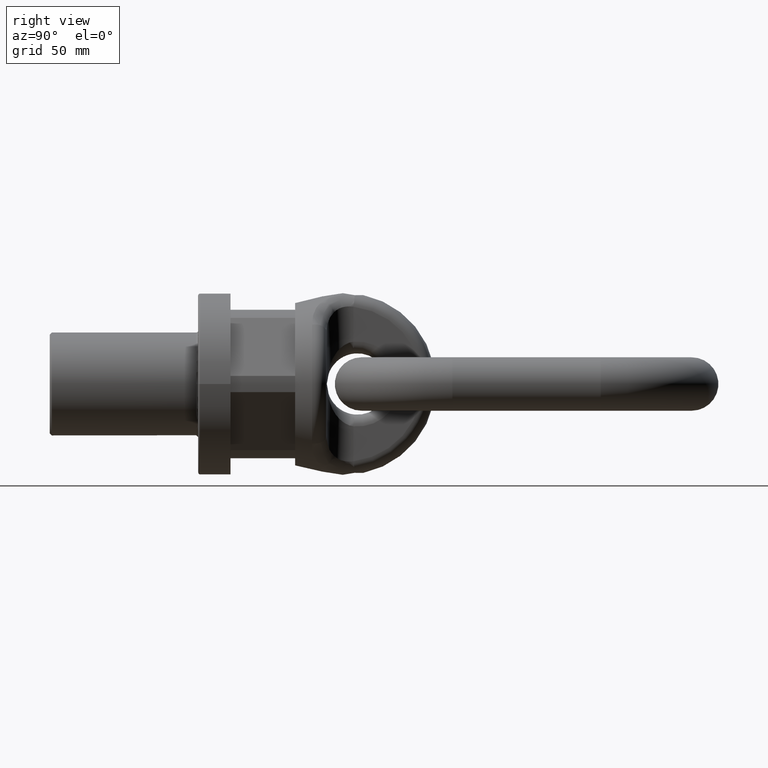
[diagram: clean part render]
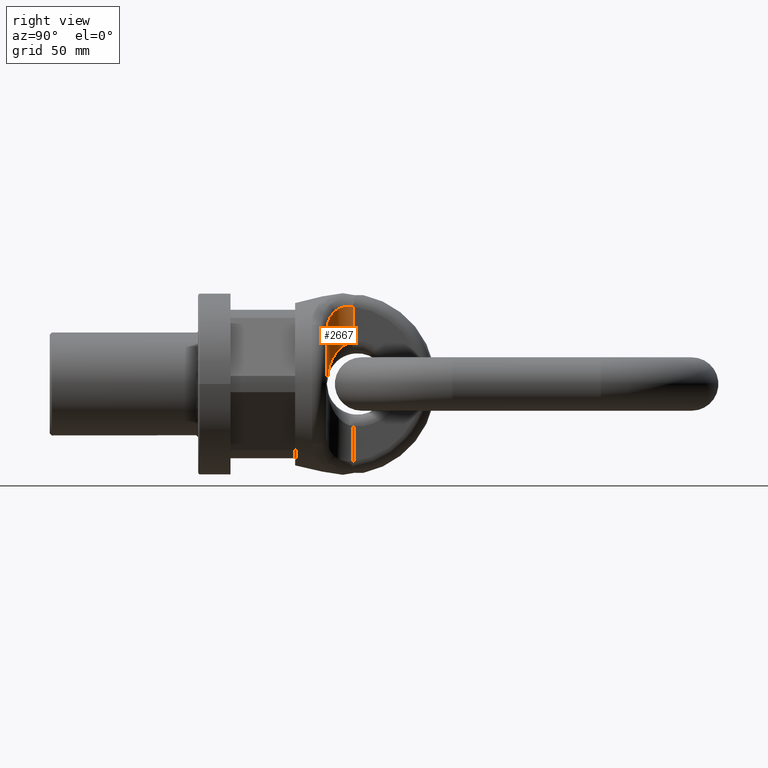
[diagram: same view with one face highlighted and labeled with its STEP entity id]
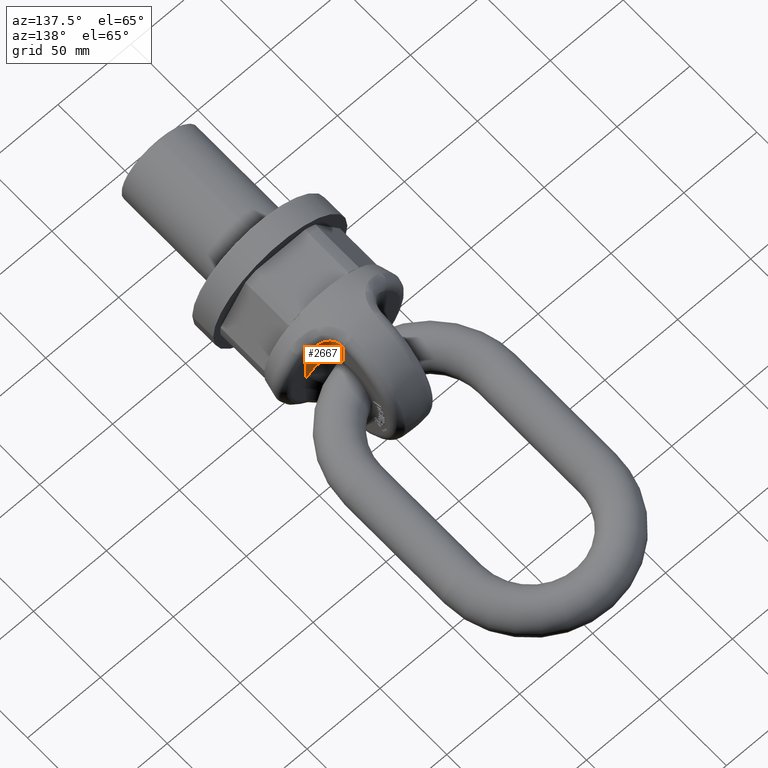
[diagram: same view with one face highlighted and labeled with its STEP entity id]
A machine part, right view. The second image highlights one B-rep face of the part: STEP entity #2667.
A second angle (auxiliary view) of the same face is appended — the face is thin or edge-on in the first view.
In plain terms, the highlighted cylindrical surface (edge-blend (fillet) strip) has radius 13.5 mm, axis along (0, 0, -1).
Its self-contained STEP definition (entity closure, byte-faithful):
#351=B_SPLINE_CURVE_WITH_KNOTS('',3,(#6972,#6973,#6974,#6975,#6976,#6977,
#6978,#6979),.UNSPECIFIED.,.F.,.F.,(4,2,2,4),(0.,0.5,0.75,1.),
 .UNSPECIFIED.);
#352=B_SPLINE_CURVE_WITH_KNOTS('',3,(#6980,#6981,#6982,#6983,#6984,#6985),
 .UNSPECIFIED.,.F.,.F.,(4,2,4),(0.,0.5,1.),.UNSPECIFIED.);
#353=B_SPLINE_CURVE_WITH_KNOTS('',3,(#6987,#6988,#6989,#6990,#6991,#6992),
 .UNSPECIFIED.,.F.,.F.,(4,2,4),(0.,0.5,1.),.UNSPECIFIED.);
#1820=FACE_OUTER_BOUND('',#3102,.T.);
#2028=CYLINDRICAL_SURFACE('',#5650,13.5);
#2071=LINE('',#6788,#2327);
#2099=LINE('',#6969,#2355);
#2327=VECTOR('',#5927,1.);
#2355=VECTOR('',#5961,1.);
#2667=ADVANCED_FACE('',(#1820),#2028,.F.);
#3102=EDGE_LOOP('',(#3511,#3512,#3513,#3514,#3515));
#3511=ORIENTED_EDGE('',*,*,#5058,.F.);
#3512=ORIENTED_EDGE('',*,*,#5059,.T.);
#3513=ORIENTED_EDGE('',*,*,#5008,.F.);
#3514=ORIENTED_EDGE('',*,*,#5060,.T.);
#3515=ORIENTED_EDGE('',*,*,#5061,.T.);
#4598=VERTEX_POINT('',#6789);
#4599=VERTEX_POINT('',#6790);
#4648=VERTEX_POINT('',#6970);
#4649=VERTEX_POINT('',#6971);
#4650=VERTEX_POINT('',#6986);
#5008=EDGE_CURVE('',#4598,#4599,#2071,.T.);
#5058=EDGE_CURVE('',#4648,#4649,#2099,.T.);
#5059=EDGE_CURVE('',#4648,#4599,#351,.T.);
#5060=EDGE_CURVE('',#4598,#4650,#352,.T.);
#5061=EDGE_CURVE('',#4650,#4649,#353,.T.);
#5650=AXIS2_PLACEMENT_3D('',#6993,#5962,#5963);
#5927=DIRECTION('',(0.,0.,-1.));
#5961=DIRECTION('',(0.,0.,1.));
#5962=DIRECTION('',(0.,0.,-1.));
#5963=DIRECTION('',(-1.,0.,0.));
#6788=CARTESIAN_POINT('',(13.5,78.5,-43.0435825646519));
#6789=CARTESIAN_POINT('',(13.5,78.5,39.0320381225475));
#6790=CARTESIAN_POINT('',(13.5,78.5,21.4067746286077));
#6969=CARTESIAN_POINT('',(27.,65.,43.0435825646519));
#6970=CARTESIAN_POINT('',(27.,65.,0.));
#6971=CARTESIAN_POINT('',(27.,65.,25.9805035838614));
#6972=CARTESIAN_POINT('',(27.,65.,-2.85611304025402E-15));
#6973=CARTESIAN_POINT('',(24.1730954971867,65.,4.287596541272));
#6974=CARTESIAN_POINT('',(21.31741609164,65.825572560723,8.61195186972769));
#6975=CARTESIAN_POINT('',(17.4413749037773,68.8276991378924,14.6031351705093));
#6976=CARTESIAN_POINT('',(16.2246410338136,70.1200839458872,16.5050711504721));
#6977=CARTESIAN_POINT('',(14.2435577247874,73.6415502057427,19.7491593798936));
#6978=CARTESIAN_POINT('',(13.5,75.9084166045796,21.0570350435674));
#6979=CARTESIAN_POINT('',(13.5,78.5,21.4067746286077));
#6980=CARTESIAN_POINT('',(13.5,78.5,39.0320381225475));
#6981=CARTESIAN_POINT('',(13.5,76.5499840439854,39.3567740144909));
#6982=CARTESIAN_POINT('',(13.9462617391829,74.5798490508736,39.2416131722303));
#6983=CARTESIAN_POINT('',(15.5092497016231,71.1699028910792,38.2402986830117));
#6984=CARTESIAN_POINT('',(16.6068690240233,69.7298015589432,37.3679576140051));
#6985=CARTESIAN_POINT('',(17.8064581196519,68.6142128439721,36.278251056184));
#6986=CARTESIAN_POINT('',(17.8064581196519,68.6142128439721,36.278251056184));
#6987=CARTESIAN_POINT('',(17.8064581196519,68.6142128439721,36.278251056184));
#6988=CARTESIAN_POINT('',(19.2957013171124,67.2292528514309,34.9254227549124));
#6989=CARTESIAN_POINT('',(20.9539518270051,66.3120571266292,33.3860654048055));
#6990=CARTESIAN_POINT('',(24.1418137043601,65.1984429071577,29.9095826751151));
#6991=CARTESIAN_POINT('',(25.6507288503275,65.,28.0059290983197));
#6992=CARTESIAN_POINT('',(27.,65.,25.9805035838614));
#6993=CARTESIAN_POINT('',(27.,78.5,50.6));